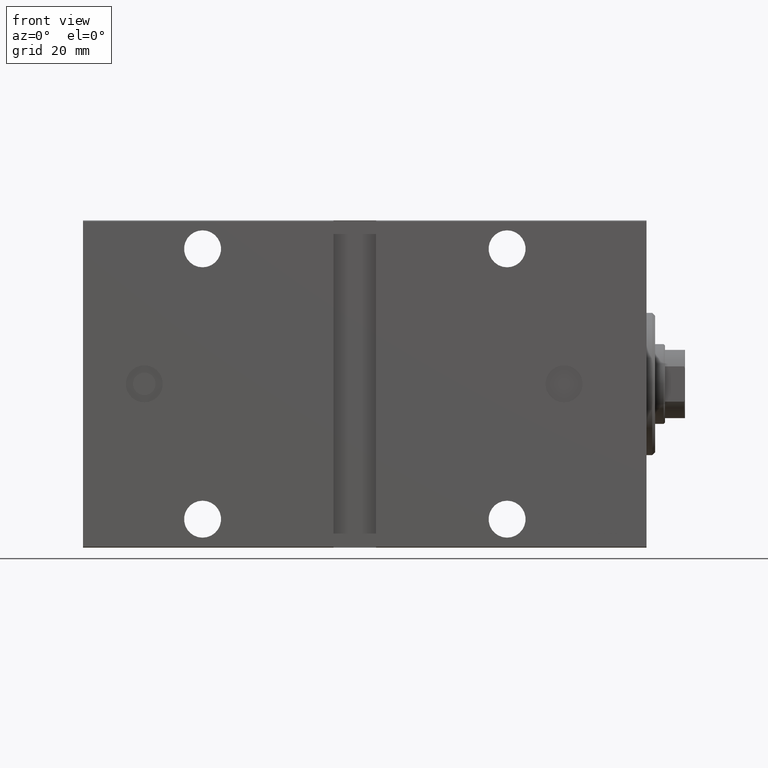
[diagram: clean part render]
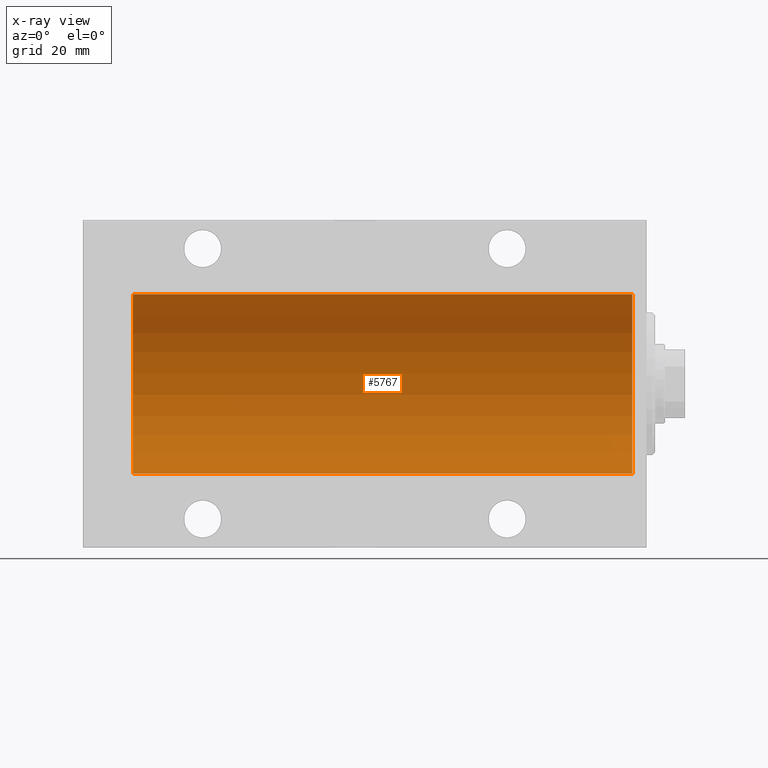
[diagram: x-ray — body ghosted, one internal face saturated and labeled with its STEP entity id]
A machine part, front view, then the same camera in x-ray: the body is ghosted and one INTERNAL B-rep face — a face not visible from any outside direction — is saturated and labeled: STEP entity #5767.
In plain terms, the highlighted cylindrical surface (partial cylindrical patch) has radius 31.5 mm, axis along (1, 0, -0).
Its self-contained STEP definition (entity closure, byte-faithful):
#3721 = LINE ( 'NONE', #12831, #9937 ) ;
#5767 = ADVANCED_FACE ( 'NONE', ( #10086 ), #23310, .F. ) ;
#5881 = CIRCLE ( 'NONE', #30142, 31.50000000000000000 ) ;
#6181 = DIRECTION ( 'NONE',  ( 0.000000000000000000, 0.000000000000000000, 1.000000000000000000 ) ) ;
#6761 = DIRECTION ( 'NONE',  ( -1.000000000000000000, -0.000000000000000000, -0.000000000000000000 ) ) ;
#8299 = CARTESIAN_POINT ( 'NONE',  ( 5.000000000000004441, 0.000000000000000000, 0.000000000000000000 ) ) ;
#9937 = VECTOR ( 'NONE', #6761, 1000.000000000000000 ) ;
#10086 = FACE_OUTER_BOUND ( 'NONE', #38831, .T. ) ;
#11491 = ORIENTED_EDGE ( 'NONE', *, *, #14969, .T. ) ;
#12251 = AXIS2_PLACEMENT_3D ( 'NONE', #39375, #16798, #6181 ) ;
#12368 = ORIENTED_EDGE ( 'NONE', *, *, #31970, .F. ) ;
#12598 = VERTEX_POINT ( 'NONE', #38558 ) ;
#12831 = CARTESIAN_POINT ( 'NONE',  ( 180.5000000000000000, 3.857637417314162689E-15, -31.50000000000000000 ) ) ;
#13712 = CARTESIAN_POINT ( 'NONE',  ( 180.5000000000000000, 0.000000000000000000, 31.50000000000000000 ) ) ;
#14969 = EDGE_CURVE ( 'NONE', #42920, #31252, #3721, .T. ) ;
#16798 = DIRECTION ( 'NONE',  ( -1.000000000000000000, -0.000000000000000000, -0.000000000000000000 ) ) ;
#18482 = VECTOR ( 'NONE', #33541, 1000.000000000000000 ) ;
#21315 = CARTESIAN_POINT ( 'NONE',  ( 180.5000000000000000, 0.000000000000000000, 0.000000000000000000 ) ) ;
#23310 = CYLINDRICAL_SURFACE ( 'NONE', #12251, 31.50000000000000000 ) ;
#23353 = CARTESIAN_POINT ( 'NONE',  ( 180.5000000000000000, 0.000000000000000000, 31.50000000000000000 ) ) ;
#24673 = AXIS2_PLACEMENT_3D ( 'NONE', #21315, #38652, #34546 ) ;
#25203 = DIRECTION ( 'NONE',  ( -1.000000000000000000, 0.000000000000000000, 0.000000000000000000 ) ) ;
#25232 = EDGE_CURVE ( 'NONE', #31252, #12598, #5881, .T. ) ;
#29619 = CIRCLE ( 'NONE', #24673, 31.50000000000000000 ) ;
#30142 = AXIS2_PLACEMENT_3D ( 'NONE', #8299, #25203, #41908 ) ;
#31252 = VERTEX_POINT ( 'NONE', #36465 ) ;
#31970 = EDGE_CURVE ( 'NONE', #42920, #38425, #29619, .T. ) ;
#33541 = DIRECTION ( 'NONE',  ( -1.000000000000000000, -0.000000000000000000, -0.000000000000000000 ) ) ;
#34546 = DIRECTION ( 'NONE',  ( 0.000000000000000000, 0.000000000000000000, 1.000000000000000000 ) ) ;
#34767 = EDGE_CURVE ( 'NONE', #38425, #12598, #37221, .T. ) ;
#36465 = CARTESIAN_POINT ( 'NONE',  ( 5.000000000000004441, 3.857637417314162689E-15, -31.50000000000000000 ) ) ;
#36989 = ORIENTED_EDGE ( 'NONE', *, *, #25232, .T. ) ;
#37221 = LINE ( 'NONE', #23353, #18482 ) ;
#37869 = CARTESIAN_POINT ( 'NONE',  ( 180.5000000000000000, 3.857637417314162689E-15, -31.50000000000000000 ) ) ;
#38425 = VERTEX_POINT ( 'NONE', #13712 ) ;
#38558 = CARTESIAN_POINT ( 'NONE',  ( 5.000000000000004441, 0.000000000000000000, 31.50000000000000000 ) ) ;
#38652 = DIRECTION ( 'NONE',  ( -1.000000000000000000, 0.000000000000000000, 0.000000000000000000 ) ) ;
#38831 = EDGE_LOOP ( 'NONE', ( #12368, #11491, #36989, #40728 ) ) ;
#39375 = CARTESIAN_POINT ( 'NONE',  ( 180.5000000000000000, 0.000000000000000000, 0.000000000000000000 ) ) ;
#40728 = ORIENTED_EDGE ( 'NONE', *, *, #34767, .F. ) ;
#41908 = DIRECTION ( 'NONE',  ( 0.000000000000000000, 0.000000000000000000, 1.000000000000000000 ) ) ;
#42920 = VERTEX_POINT ( 'NONE', #37869 ) ;